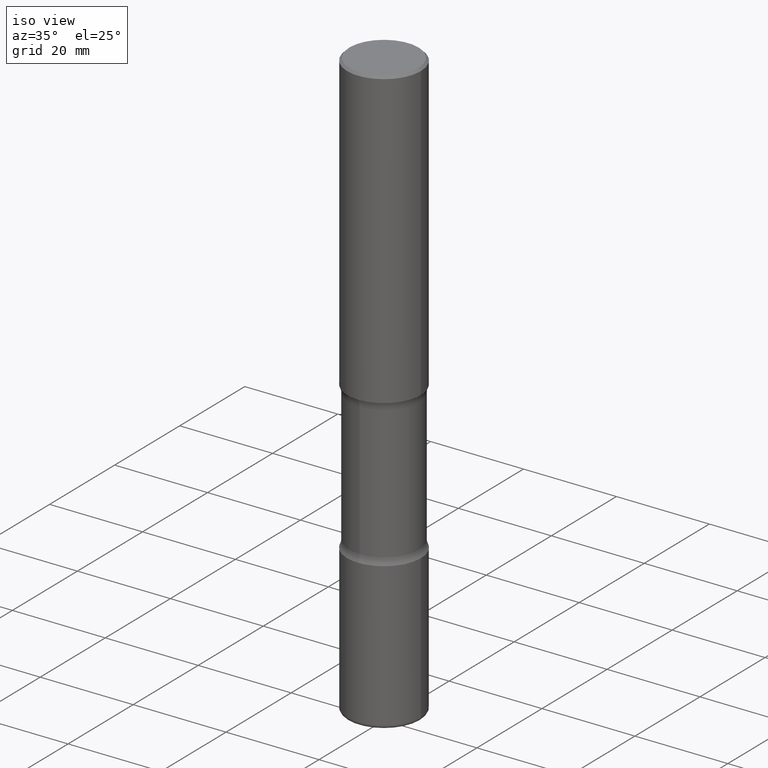
[diagram: clean part render]
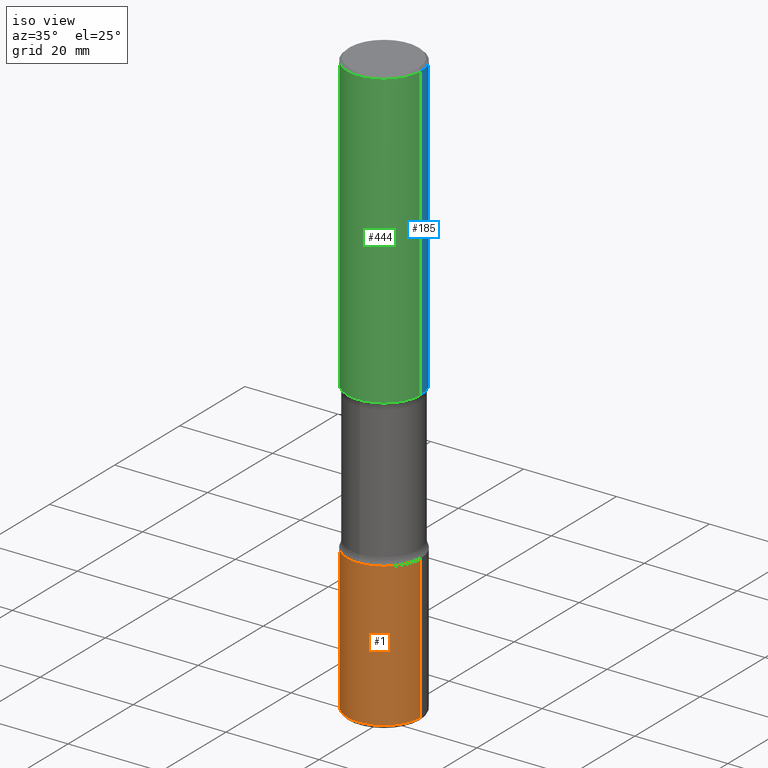
[diagram: same view with three faces highlighted in distinct colors, each labeled with its STEP entity id]
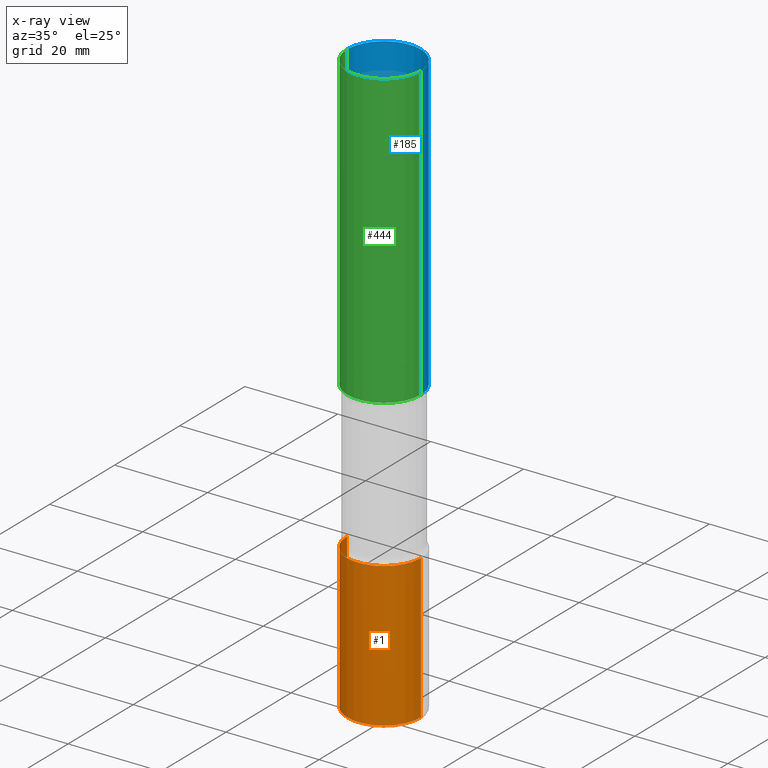
[diagram: x-ray of the same camera — body ghosted, the three highlighted faces saturated]
A machine part, iso view with three faces highlighted in distinct colors.
The next image is the same camera in x-ray (body ghosted, the three faces saturated) — at least one of them is partly hidden behind the body in this view.
Their STEP definitions:

[orange] entity #1 — the highlighted cylindrical surface (partial cylindrical patch) has radius 7.9375 mm, axis along (-0, 0, 1).
#1 = ADVANCED_FACE ( 'NONE', ( #430 ), #308, .T. ) ;
#15 = EDGE_CURVE ( 'NONE', #206, #325, #534, .T. ) ;
#19 = ORIENTED_EDGE ( 'NONE', *, *, #230, .F. ) ;
#39 = DIRECTION ( 'NONE',  ( 1.000000000000000000, -6.982962677686266711E-15, 4.876176775795936353E-29 ) ) ;
#52 = DIRECTION ( 'NONE',  ( -2.445468806185136597E-29, 3.491481338843145583E-15, 1.000000000000000000 ) ) ;
#55 = CARTESIAN_POINT ( 'NONE',  ( -0.3125000000000007216, -1.513221620480011397E-14, -4.969999999999999751 ) ) ;
#61 = LINE ( 'NONE', #226, #294 ) ;
#75 = ORIENTED_EDGE ( 'NONE', *, *, #15, .F. ) ;
#77 = ORIENTED_EDGE ( 'NONE', *, *, #511, .T. ) ;
#83 = AXIS2_PLACEMENT_3D ( 'NONE', #436, #341, #441 ) ;
#102 = CIRCLE ( 'NONE', #507, 0.3125000000000003331 ) ;
#113 = VERTEX_POINT ( 'NONE', #173 ) ;
#148 = DIRECTION ( 'NONE',  ( -2.445468806185136877E-29, 3.491481338843145188E-15, 1.000000000000000000 ) ) ;
#173 = CARTESIAN_POINT ( 'NONE',  ( 0.3125000000000007216, -1.953483809082739329E-14, -4.969999999999999751 ) ) ;
#193 = ORIENTED_EDGE ( 'NONE', *, *, #263, .T. ) ;
#206 = VERTEX_POINT ( 'NONE', #273 ) ;
#210 = DIRECTION ( 'NONE',  ( -2.445468806185136597E-29, 3.491481338843145583E-15, 1.000000000000000000 ) ) ;
#226 = CARTESIAN_POINT ( 'NONE',  ( -0.3125000000000002776, 2.220446049250315053E-15, -1.537167215704659353E-29 ) ) ;
#230 = EDGE_CURVE ( 'NONE', #476, #206, #61, .T. ) ;
#263 = EDGE_CURVE ( 'NONE', #113, #325, #500, .T. ) ;
#268 = VECTOR ( 'NONE', #148, 39.37007874015748143 ) ;
#273 = CARTESIAN_POINT ( 'NONE',  ( -0.3125000000000001665, -1.300241258810579915E-14, -3.749999999999999556 ) ) ;
#293 = AXIS2_PLACEMENT_3D ( 'NONE', #525, #210, #39 ) ;
#294 = VECTOR ( 'NONE', #409, 39.37007874015748143 ) ;
#308 = CYLINDRICAL_SURFACE ( 'NONE', #293, 0.3125000000000002776 ) ;
#325 = VERTEX_POINT ( 'NONE', #431 ) ;
#341 = DIRECTION ( 'NONE',  ( -2.445468806185136597E-29, 3.491481338843145583E-15, 1.000000000000000000 ) ) ;
#399 = EDGE_LOOP ( 'NONE', ( #19, #77, #193, #75 ) ) ;
#409 = DIRECTION ( 'NONE',  ( -2.445468806185136877E-29, 3.491481338843145188E-15, 1.000000000000000000 ) ) ;
#430 = FACE_OUTER_BOUND ( 'NONE', #399, .T. ) ;
#431 = CARTESIAN_POINT ( 'NONE',  ( 0.3125000000000001665, -1.527523085743875418E-14, -3.749999999999999556 ) ) ;
#436 = CARTESIAN_POINT ( 'NONE',  ( 9.170508023194261117E-29, -1.309305502066179584E-14, -3.749999999999999556 ) ) ;
#441 = DIRECTION ( 'NONE',  ( 1.000000000000000000, -6.982962677686265133E-15, 0.000000000000000000 ) ) ;
#445 = CARTESIAN_POINT ( 'NONE',  ( 1.215397996674012835E-28, -1.735266225405043336E-14, -4.969999999999999751 ) ) ;
#476 = VERTEX_POINT ( 'NONE', #55 ) ;
#494 = DIRECTION ( 'NONE',  ( 1.000000000000000000, -6.982962677686261977E-15, 0.000000000000000000 ) ) ;
#497 = CARTESIAN_POINT ( 'NONE',  ( 0.3125000000000002776, -2.182175836776960319E-15, 1.523805242436231477E-29 ) ) ;
#500 = LINE ( 'NONE', #497, #268 ) ;
#507 = AXIS2_PLACEMENT_3D ( 'NONE', #445, #52, #494 ) ;
#511 = EDGE_CURVE ( 'NONE', #476, #113, #102, .T. ) ;
#525 = CARTESIAN_POINT ( 'NONE',  ( 0.000000000000000000, 0.000000000000000000, 0.000000000000000000 ) ) ;
#534 = CIRCLE ( 'NONE', #83, 0.3125000000000001665 ) ;

[blue] entity #185 — the highlighted cylindrical surface (partial cylindrical patch) has radius 7.9375 mm, axis along (-0, 0, 1).
#7 = DIRECTION ( 'NONE',  ( -2.445468806185136597E-29, 3.491481338843145583E-15, 1.000000000000000000 ) ) ;
#9 = DIRECTION ( 'NONE',  ( -2.445468806185136597E-29, 3.491481338843145583E-15, 1.000000000000000000 ) ) ;
#22 = VERTEX_POINT ( 'NONE', #43 ) ;
#43 = CARTESIAN_POINT ( 'NONE',  ( 0.3124999999999998890, -2.213735251080466123E-15, -0.02000000000000006981 ) ) ;
#57 = CARTESIAN_POINT ( 'NONE',  ( -0.3124999999999998890, 2.112346210000094260E-15, -0.02000000000000006981 ) ) ;
#58 = CARTESIAN_POINT ( 'NONE',  ( 0.3125000000000002220, -1.091087918388482329E-14, -2.499999999999999556 ) ) ;
#60 = DIRECTION ( 'NONE',  ( 1.000000000000000000, -6.982962677686266711E-15, 0.000000000000000000 ) ) ;
#82 = ORIENTED_EDGE ( 'NONE', *, *, #523, .F. ) ;
#106 = CARTESIAN_POINT ( 'NONE',  ( -0.3125000000000002220, -2.178820437692046306E-15, -2.499999999999999556 ) ) ;
#108 = CYLINDRICAL_SURFACE ( 'NONE', #258, 0.3125000000000000000 ) ;
#111 = VECTOR ( 'NONE', #132, 39.37007874015748143 ) ;
#116 = ORIENTED_EDGE ( 'NONE', *, *, #455, .F. ) ;
#132 = DIRECTION ( 'NONE',  ( -2.445468806185136877E-29, 3.491481338843145188E-15, 1.000000000000000000 ) ) ;
#138 = DIRECTION ( 'NONE',  ( 1.000000000000000000, -6.982962677686266711E-15, 4.876176775795936353E-29 ) ) ;
#176 = LINE ( 'NONE', #524, #111 ) ;
#183 = CARTESIAN_POINT ( 'NONE',  ( 4.890937612370289799E-31, -6.982962677686315028E-17, -0.02000000000000006981 ) ) ;
#185 = ADVANCED_FACE ( 'NONE', ( #318 ), #108, .T. ) ;
#187 = LINE ( 'NONE', #361, #438 ) ;
#191 = DIRECTION ( 'NONE',  ( 1.000000000000000000, -6.982962677686266711E-15, 0.000000000000000000 ) ) ;
#211 = CIRCLE ( 'NONE', #499, 0.3125000000000002220 ) ;
#236 = CARTESIAN_POINT ( 'NONE',  ( 0.000000000000000000, 0.000000000000000000, 0.000000000000000000 ) ) ;
#248 = VERTEX_POINT ( 'NONE', #58 ) ;
#253 = EDGE_LOOP ( 'NONE', ( #283, #324, #82, #116 ) ) ;
#258 = AXIS2_PLACEMENT_3D ( 'NONE', #236, #489, #138 ) ;
#283 = ORIENTED_EDGE ( 'NONE', *, *, #471, .T. ) ;
#309 = DIRECTION ( 'NONE',  ( -2.445468806185136877E-29, 3.491481338843145188E-15, 1.000000000000000000 ) ) ;
#317 = CARTESIAN_POINT ( 'NONE',  ( 6.113672015462840371E-29, -8.728703347107863365E-15, -2.499999999999999556 ) ) ;
#318 = FACE_OUTER_BOUND ( 'NONE', #253, .T. ) ;
#324 = ORIENTED_EDGE ( 'NONE', *, *, #327, .T. ) ;
#327 = EDGE_CURVE ( 'NONE', #514, #504, #176, .T. ) ;
#361 = CARTESIAN_POINT ( 'NONE',  ( 0.3125000000000000000, -2.182175836776958347E-15, 1.523805242436230075E-29 ) ) ;
#380 = CIRCLE ( 'NONE', #401, 0.3124999999999998890 ) ;
#401 = AXIS2_PLACEMENT_3D ( 'NONE', #183, #7, #60 ) ;
#438 = VECTOR ( 'NONE', #309, 39.37007874015748143 ) ;
#455 = EDGE_CURVE ( 'NONE', #248, #22, #187, .T. ) ;
#471 = EDGE_CURVE ( 'NONE', #248, #514, #211, .T. ) ;
#489 = DIRECTION ( 'NONE',  ( -2.445468806185136597E-29, 3.491481338843145583E-15, 1.000000000000000000 ) ) ;
#499 = AXIS2_PLACEMENT_3D ( 'NONE', #317, #9, #191 ) ;
#504 = VERTEX_POINT ( 'NONE', #57 ) ;
#514 = VERTEX_POINT ( 'NONE', #106 ) ;
#523 = EDGE_CURVE ( 'NONE', #22, #504, #380, .T. ) ;
#524 = CARTESIAN_POINT ( 'NONE',  ( -0.3125000000000000000, 2.220446049250313081E-15, -1.537167215704658232E-29 ) ) ;

[green] entity #444 — the highlighted cylindrical surface (partial cylindrical patch) has radius 7.9375 mm, axis along (-0, 0, 1).
#22 = VERTEX_POINT ( 'NONE', #43 ) ;
#42 = DIRECTION ( 'NONE',  ( 1.000000000000000000, -6.982962677686266711E-15, 4.876176775795936353E-29 ) ) ;
#43 = CARTESIAN_POINT ( 'NONE',  ( 0.3124999999999998890, -2.213735251080466123E-15, -0.02000000000000006981 ) ) ;
#48 = ORIENTED_EDGE ( 'NONE', *, *, #455, .T. ) ;
#57 = CARTESIAN_POINT ( 'NONE',  ( -0.3124999999999998890, 2.112346210000094260E-15, -0.02000000000000006981 ) ) ;
#58 = CARTESIAN_POINT ( 'NONE',  ( 0.3125000000000002220, -1.091087918388482329E-14, -2.499999999999999556 ) ) ;
#66 = CARTESIAN_POINT ( 'NONE',  ( 6.113672015462840371E-29, -8.728703347107863365E-15, -2.499999999999999556 ) ) ;
#88 = CYLINDRICAL_SURFACE ( 'NONE', #427, 0.3125000000000000000 ) ;
#106 = CARTESIAN_POINT ( 'NONE',  ( -0.3125000000000002220, -2.178820437692046306E-15, -2.499999999999999556 ) ) ;
#109 = EDGE_CURVE ( 'NONE', #514, #248, #276, .T. ) ;
#111 = VECTOR ( 'NONE', #132, 39.37007874015748143 ) ;
#132 = DIRECTION ( 'NONE',  ( -2.445468806185136877E-29, 3.491481338843145188E-15, 1.000000000000000000 ) ) ;
#145 = DIRECTION ( 'NONE',  ( 1.000000000000000000, -6.982962677686266711E-15, 0.000000000000000000 ) ) ;
#160 = AXIS2_PLACEMENT_3D ( 'NONE', #454, #412, #456 ) ;
#164 = EDGE_LOOP ( 'NONE', ( #198, #220, #48, #373 ) ) ;
#168 = CIRCLE ( 'NONE', #160, 0.3124999999999998890 ) ;
#176 = LINE ( 'NONE', #524, #111 ) ;
#187 = LINE ( 'NONE', #361, #438 ) ;
#198 = ORIENTED_EDGE ( 'NONE', *, *, #327, .F. ) ;
#220 = ORIENTED_EDGE ( 'NONE', *, *, #109, .T. ) ;
#222 = AXIS2_PLACEMENT_3D ( 'NONE', #66, #237, #145 ) ;
#237 = DIRECTION ( 'NONE',  ( -2.445468806185136597E-29, 3.491481338843145583E-15, 1.000000000000000000 ) ) ;
#248 = VERTEX_POINT ( 'NONE', #58 ) ;
#276 = CIRCLE ( 'NONE', #222, 0.3125000000000002220 ) ;
#296 = DIRECTION ( 'NONE',  ( -2.445468806185136597E-29, 3.491481338843145583E-15, 1.000000000000000000 ) ) ;
#309 = DIRECTION ( 'NONE',  ( -2.445468806185136877E-29, 3.491481338843145188E-15, 1.000000000000000000 ) ) ;
#327 = EDGE_CURVE ( 'NONE', #514, #504, #176, .T. ) ;
#361 = CARTESIAN_POINT ( 'NONE',  ( 0.3125000000000000000, -2.182175836776958347E-15, 1.523805242436230075E-29 ) ) ;
#373 = ORIENTED_EDGE ( 'NONE', *, *, #530, .F. ) ;
#412 = DIRECTION ( 'NONE',  ( -2.445468806185136597E-29, 3.491481338843145583E-15, 1.000000000000000000 ) ) ;
#427 = AXIS2_PLACEMENT_3D ( 'NONE', #515, #296, #42 ) ;
#438 = VECTOR ( 'NONE', #309, 39.37007874015748143 ) ;
#444 = ADVANCED_FACE ( 'NONE', ( #550 ), #88, .T. ) ;
#454 = CARTESIAN_POINT ( 'NONE',  ( 4.890937612370289799E-31, -6.982962677686315028E-17, -0.02000000000000006981 ) ) ;
#455 = EDGE_CURVE ( 'NONE', #248, #22, #187, .T. ) ;
#456 = DIRECTION ( 'NONE',  ( 1.000000000000000000, -6.982962677686266711E-15, 0.000000000000000000 ) ) ;
#504 = VERTEX_POINT ( 'NONE', #57 ) ;
#514 = VERTEX_POINT ( 'NONE', #106 ) ;
#515 = CARTESIAN_POINT ( 'NONE',  ( 0.000000000000000000, 0.000000000000000000, 0.000000000000000000 ) ) ;
#524 = CARTESIAN_POINT ( 'NONE',  ( -0.3125000000000000000, 2.220446049250313081E-15, -1.537167215704658232E-29 ) ) ;
#530 = EDGE_CURVE ( 'NONE', #504, #22, #168, .T. ) ;
#550 = FACE_OUTER_BOUND ( 'NONE', #164, .T. ) ;